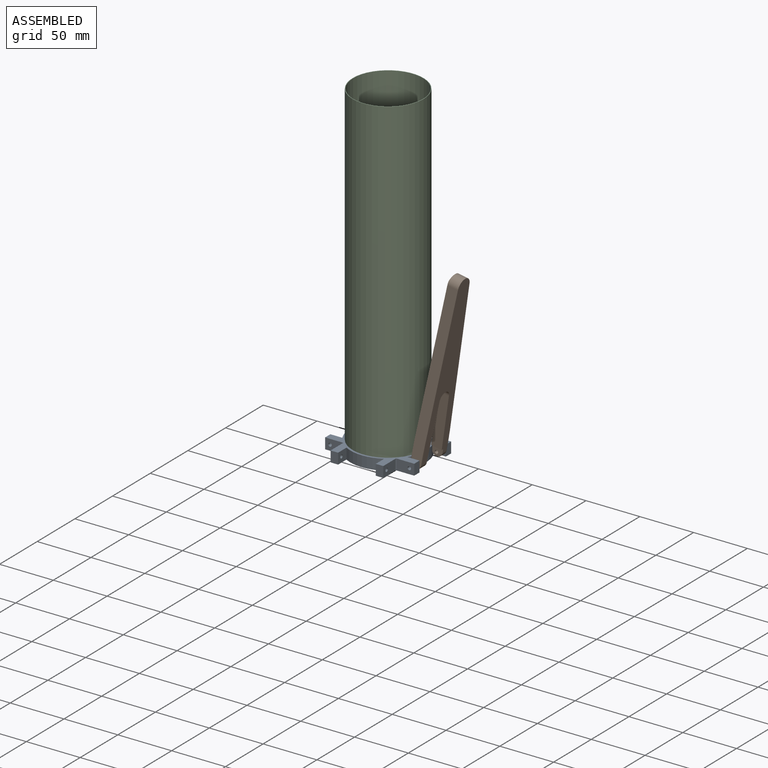
[diagram: assembled view]
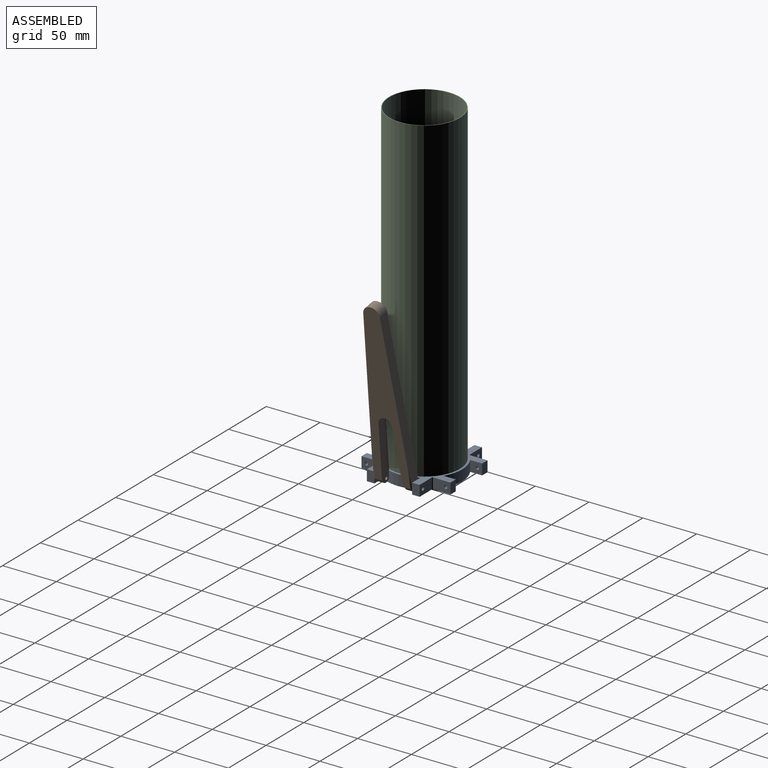
[diagram: assembled view, second angle]
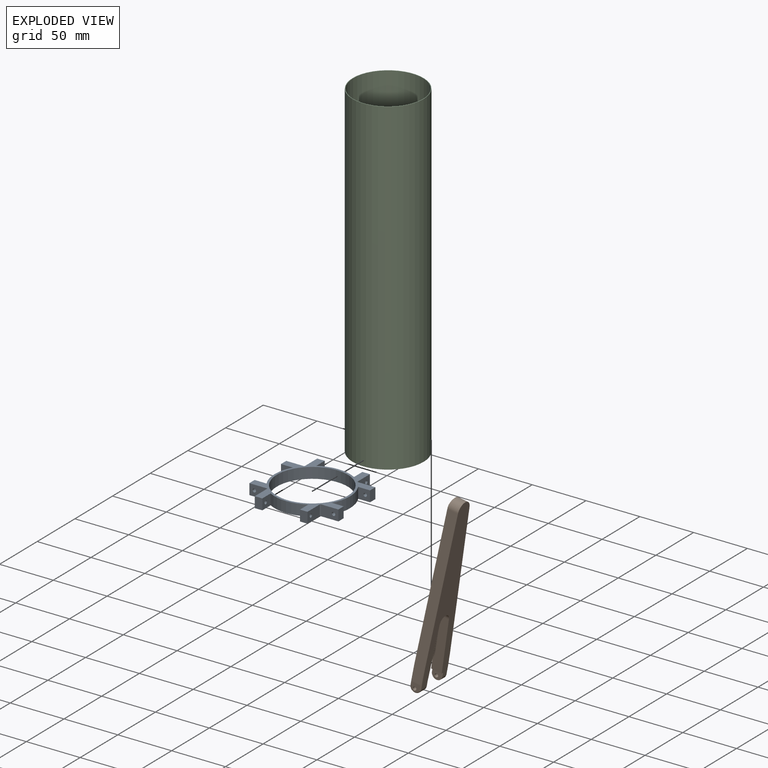
[diagram: exploded view]
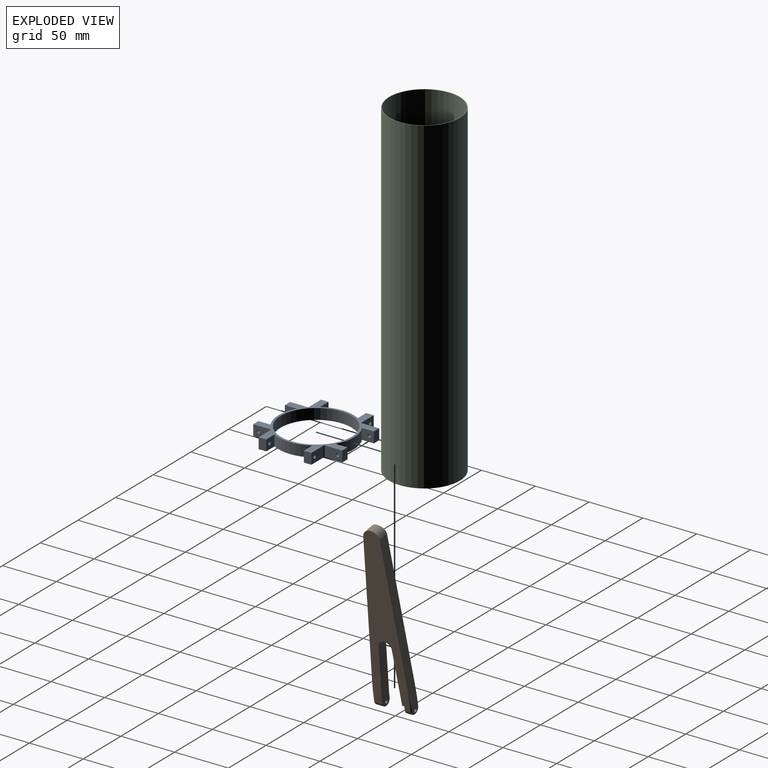
[diagram: exploded view, second angle]
ASSEMBLY  parts=3 mates=2
PART A: 43 faces, bbox 82.8x82.8x10 mm
  f0: plane 16.4x10mm, normal (-1,0,0), area 156.1mm2, adj f6,f7,f8,f10,f12
  f1: cylinder r=33mm len=66mm, axis (0,0,-1), area 2073.5mm2, adj f6,f7
  f2: plane 16.4x10mm, normal (1,0,0), area 156.1mm2, adj f6,f7,f9,f11,f13
  f3: plane 11.08x10mm, normal (-1,0,0), area 102.9mm2, adj f4,f6,f7,f9,f11
  f4: cylinder r=35mm len=35mm, axis (0,0,-1), area 366.5mm2, adj f3,f5,f6,f7
  f5: plane 11.08x10mm, normal (1,0,0), area 102.9mm2, adj f4,f6,f7,f8,f10
  f6: plane 82.78x82.78mm, normal (0,0,1), area 1183.7mm2, adj f0,f1,f2,f3,f4,f5,f8,f9
  f7: plane 82.78x82.78mm, normal (0,0,-1), area 1183.7mm2, adj f0,f1,f2,f3,f4,f5,f8,f9
  f8: plane 10x7mm, normal (0,1,0), area 70mm2, adj f0,f5,f6,f7
  f9: plane 10x7mm, normal (0,1,0), area 70mm2, adj f2,f3,f6,f7
  f10: cylinder r=1.59mm len=7mm, axis (1,0,0), area 69.8mm2, adj f0,f5
  f11: cylinder r=1.59mm len=7mm, axis (1,0,0), area 69.8mm2, adj f2,f3
  f12: cylinder r=35mm len=10mm, axis (0,0,-1), area 7mm2, adj f0,f6,f7,f15
  f13: cylinder r=35mm len=10mm, axis (0,0,-1), area 7mm2, adj f2,f6,f7,f34
  f14: plane 16.4x10mm, normal (0,-1,0), area 156.1mm2, adj f6,f7,f19,f21,f23
  f15: plane 16.4x10mm, normal (0,1,0), area 156.1mm2, adj f6,f7,f12,f20,f22
  f16: plane 11.08x10mm, normal (0,-1,0), area 102.9mm2, adj f6,f7,f17,f20,f22
  f17: cylinder r=35mm len=35mm, axis (0,0,-1), area 366.5mm2, adj f6,f7,f16,f18
  f18: plane 11.08x10mm, normal (0,1,0), area 102.9mm2, adj f6,f7,f17,f19,f21
  f19: plane 10x7mm, normal (-1,0,0), area 70mm2, adj f6,f7,f14,f18
  f20: plane 10x7mm, normal (-1,0,0), area 70mm2, adj f6,f7,f15,f16
  f21: cylinder r=1.59mm len=7mm, axis (0,1,0), area 69.8mm2, adj f14,f18
  f22: cylinder r=1.59mm len=7mm, axis (0,1,0), area 69.8mm2, adj f15,f16
  f23: cylinder r=35mm len=10mm, axis (0,0,-1), area 7mm2, adj f6,f7,f14,f25
  f24: plane 16.4x10mm, normal (1,0,0), area 156.1mm2, adj f6,f7,f29,f31,f33
  f25: plane 16.4x10mm, normal (-1,0,0), area 156.1mm2, adj f6,f7,f23,f30,f32
  f26: plane 11.08x10mm, normal (1,0,0), area 102.9mm2, adj f6,f7,f27,f30,f32
  f27: cylinder r=35mm len=35mm, axis (0,0,-1), area 366.5mm2, adj f6,f7,f26,f28
  f28: plane 11.08x10mm, normal (-1,0,0), area 102.9mm2, adj f6,f7,f27,f29,f31
  f29: plane 10x7mm, normal (0,-1,0), area 70mm2, adj f6,f7,f24,f28
  f30: plane 10x7mm, normal (0,-1,0), area 70mm2, adj f6,f7,f25,f26
  f31: cylinder r=1.59mm len=7mm, axis (-1,0,0), area 69.8mm2, adj f24,f28
  f32: cylinder r=1.59mm len=7mm, axis (-1,0,0), area 69.8mm2, adj f25,f26
  f33: cylinder r=35mm len=10mm, axis (0,0,-1), area 7mm2, adj f6,f7,f24,f35
  f34: plane 16.4x10mm, normal (0,1,0), area 156.1mm2, adj f6,f7,f13,f39,f41
  f35: plane 16.4x10mm, normal (0,-1,0), area 156.1mm2, adj f6,f7,f33,f40,f42
  f36: plane 11.08x10mm, normal (0,1,0), area 102.9mm2, adj f6,f7,f37,f40,f42
  f37: cylinder r=35mm len=35mm, axis (0,0,-1), area 366.5mm2, adj f6,f7,f36,f38
  f38: plane 11.08x10mm, normal (0,-1,0), area 102.9mm2, adj f6,f7,f37,f39,f41
  f39: plane 10x7mm, normal (1,0,0), area 70mm2, adj f6,f7,f34,f38
  f40: plane 10x7mm, normal (1,0,0), area 70mm2, adj f6,f7,f35,f36
  f41: cylinder r=1.59mm len=7mm, axis (0,-1,0), area 69.8mm2, adj f34,f38
  f42: cylinder r=1.59mm len=7mm, axis (0,-1,0), area 69.8mm2, adj f35,f36
PART B: 25 faces, bbox 166.6x35x10.8 mm
  f0: plane 157.46x9.89mm, normal (0,0,1), area 848.9mm2, adj f7,f11,f12,f15,f16,f22,f23,f24
  f1: plane 161.2x33mm, normal (0,0,-1), area 3059mm2, adj f6,f7,f8,f9,f10,f11,f12,f14
  f2: cylinder r=1.59mm len=6mm, axis (0,-1,0), area 59.8mm2, adj f4,f24
  f3: plane 157.46x9.89mm, normal (0,0,1), area 855.9mm2, adj f6,f9,f10,f11,f14,f21,f22
  f4: plane 8x7.5mm, normal (0,1,0), area 45.2mm2, adj f2,f12,f16,f17,f18
  f5: plane 8x7.5mm, normal (0,-1,0), area 45.2mm2, adj f10,f13,f19,f20,f21
  f6: plane 10x8.5mm, normal (0,1,0), area 66.4mm2, adj f1,f3,f9,f13,f14
  f7: plane 50x10mm, normal (-0.07,-1,0), area 500.9mm2, adj f0,f1,f8,f22,f23
  f8: cylinder r=6.25mm len=12.48mm, axis (0,0,-1), area 181.1mm2, adj f1,f7,f9,f22
  f9: plane 50x10mm, normal (-0.07,1,0), area 500.9mm2, adj f1,f3,f6,f8,f22
  f10: plane 150.5x10mm, normal (0.07,-1,0), area 1501.6mm2, adj f1,f3,f5,f11,f19,f21
  f11: cylinder r=7.7mm len=15.37mm, axis (0,0,-1), area 225.4mm2, adj f0,f1,f3,f10,f12,f22
  f12: plane 150.5x10mm, normal (0.07,1,0), area 1501.6mm2, adj f0,f1,f4,f11,f16,f18
  f13: cylinder r=1.59mm len=8mm, axis (0,-1,0), area 79.8mm2, adj f5,f6
  f14: cylinder r=5mm len=10mm, axis (0,1,0), area 110mm2, adj f1,f3,f6,f20
  f15: cylinder r=5mm len=10mm, axis (0,1,0), area 78.5mm2, adj f0,f1,f17,f24
  f16: cylinder r=1mm len=18.83mm, axis (-1,0,0), area 14.2mm2, adj f0,f4,f12,f17
  f17: torus R=4mm, axis (0,-1,0), area 22.9mm2, adj f4,f15,f16,f18
  f18: cylinder r=1mm len=18.83mm, axis (1,0,0), area 14.2mm2, adj f1,f4,f12,f17
  f19: cylinder r=1mm len=18.83mm, axis (-1,0,0), area 14.2mm2, adj f1,f5,f10,f20
  f20: torus R=4mm, axis (0,-1,0), area 22.9mm2, adj f5,f14,f19,f21
  f21: cylinder r=1mm len=18.83mm, axis (1,0,0), area 14.2mm2, adj f3,f5,f10,f20
  f22: cylinder r=33mm len=113.33mm, axis (1,0,0), area 1363.6mm2, adj f0,f3,f7,f8,f9,f11
  f23: plane 10x2mm, normal (-1,0,0), area 20mm2, adj f0,f1,f7,f24
  f24: plane 10x8.5mm, normal (0,-1,0), area 66.4mm2, adj f0,f1,f2,f15,f23
PART C: 4 faces, bbox 66x66x304.8 mm
  f0: cylinder r=32.5mm len=304.8mm, axis (0,0,-1), area 62241.2mm2, adj f2,f3
  f1: cylinder r=33mm len=304.8mm, axis (0,0,-1), area 63198.8mm2, adj f2,f3
  f2: plane 66x66mm, normal (0,0,1), area 102.9mm2, adj f0,f1
  f3: plane 66x66mm, normal (0,0,-1), area 102.9mm2, adj f0,f1
PLACE A t=(11.21,0,11.86)mm
PLACE B rot(axis=(0,-1,0),79.6deg) t=(78.44,0,168.87)mm
PLACE C t=(11.21,0,11.86)mm fixed
MATE revolute B.f2 <-> A.f41  axis (0,-1,0) through (48.04,-17.5,16.86)mm
MATE fastened A.f1 <-> C.f0  axis (0,0,-1) through (11.21,0,11.86)mm
